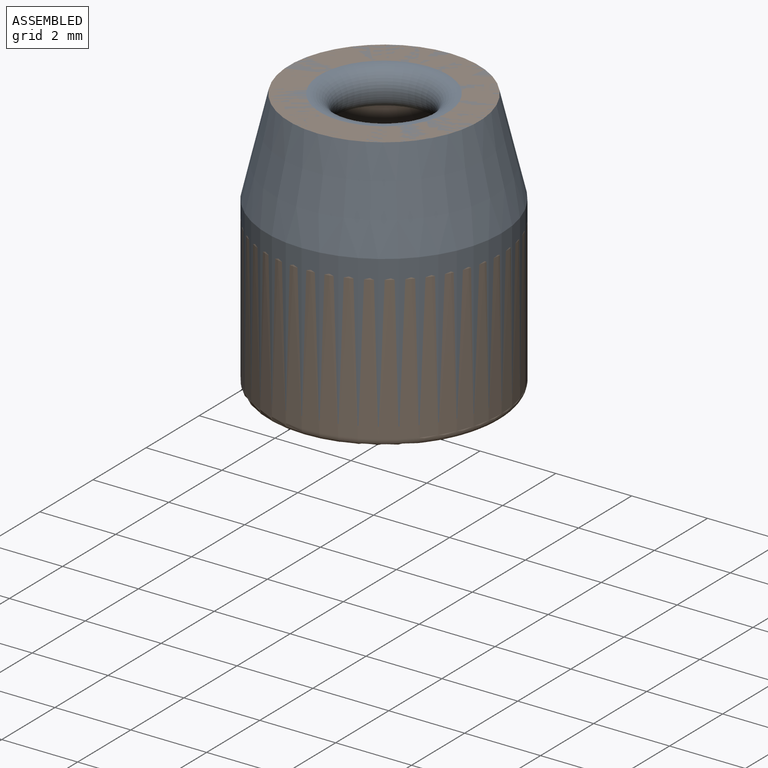
[diagram: assembled view]
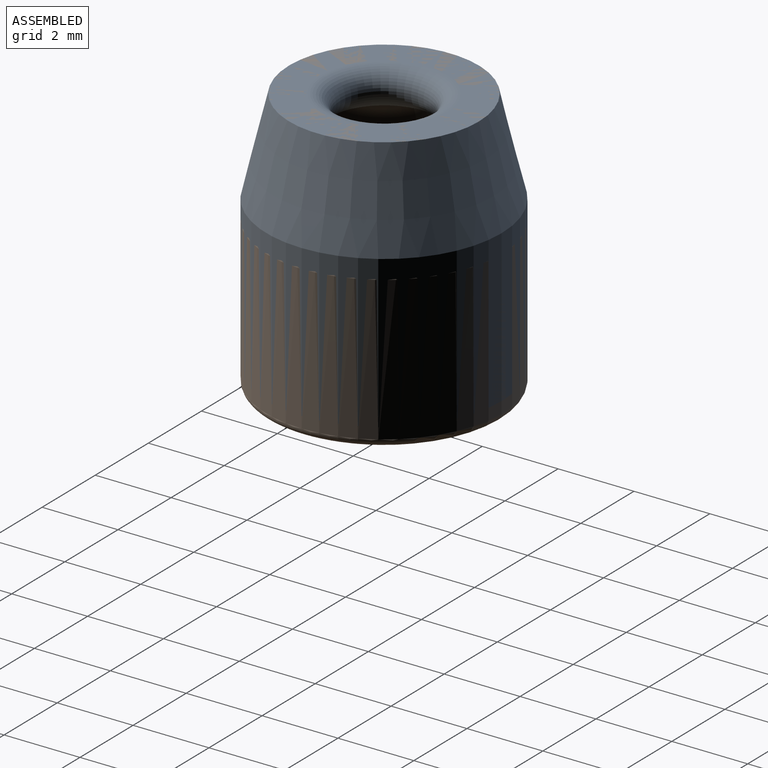
[diagram: assembled view, second angle]
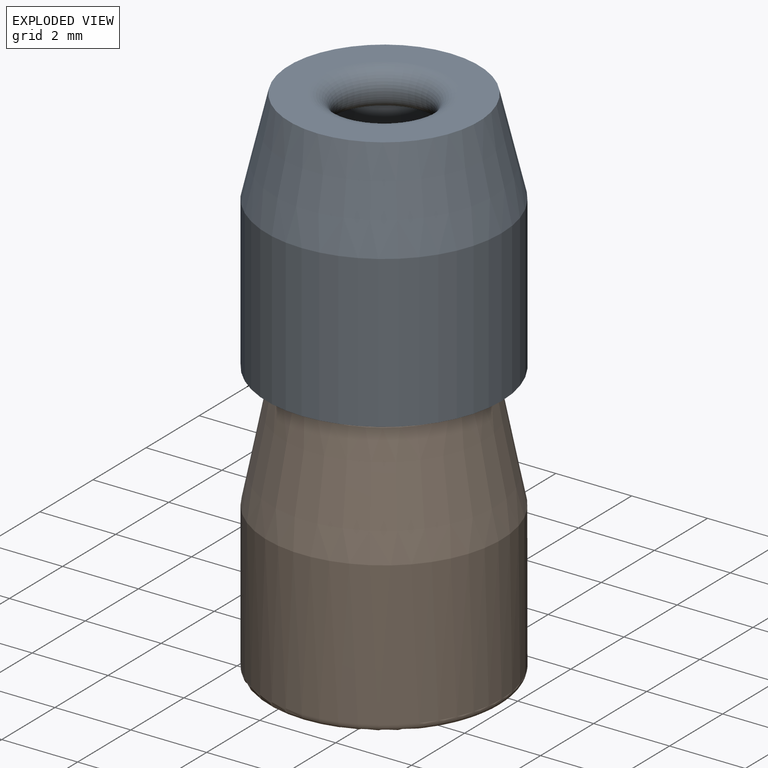
[diagram: exploded view]
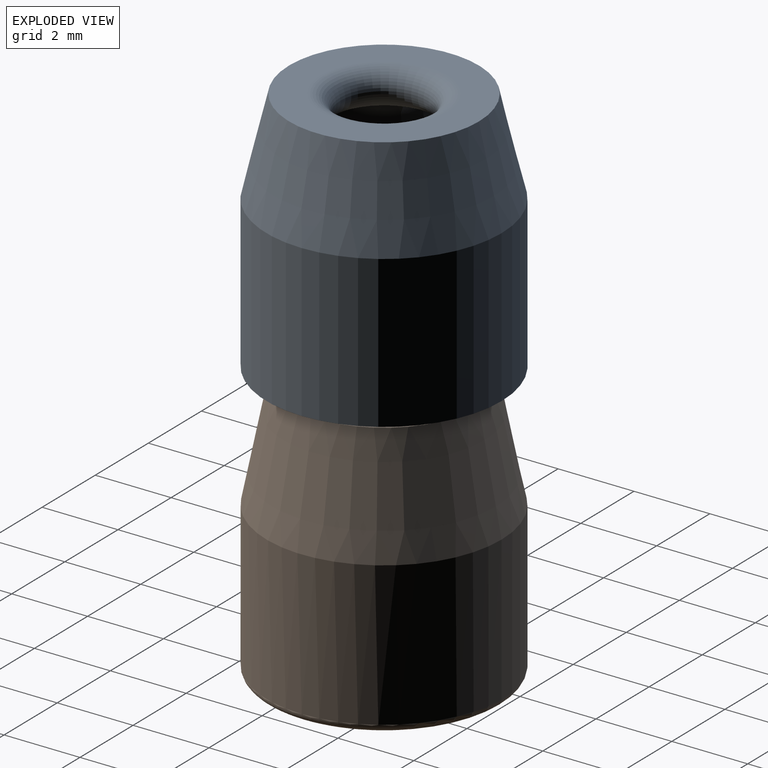
[diagram: exploded view, second angle]
ASSEMBLY  parts=2 mates=2
PART A: 9 faces, bbox 6.2x6.2x6.5 mm
  f0: cylinder r=2.5mm len=5mm, axis (0,0,-1), area 47.1mm2, adj f1,f8
  f1: cone r=2.14mm half-angle=13.5deg, axis (0,0,-1), area 22.5mm2, adj f0,f2
  f2: plane 4.28x4.28mm, normal (0,0,-1), area 5.8mm2, adj f1,f3
  f3: torus R=1.65mm, axis (0,0,-1), area 13.1mm2, adj f2,f4
  f4: plane 5x5mm, normal (0,0,1), area 11.1mm2, adj f3,f5
  f5: cone r=2.5mm half-angle=13.5deg, axis (0,0,-1), area 45.2mm2, adj f4,f6
  f6: cylinder r=3.1mm len=6.2mm, axis (0,0,-1), area 77.9mm2, adj f5,f7
  f7: plane 6.2x6.2mm, normal (0,0,-1), area 10.6mm2, adj f6,f8
  f8: torus R=2.5mm, axis (0,0,-1), area 21.5mm2, adj f0,f7
PART B: 9 faces, bbox 6.7x6.7x7 mm
  f0: plane 5.8x5.8mm, normal (0,0,-1), area 6.8mm2, adj f7,f8
  f1: cylinder r=3.1mm len=6.2mm, axis (0,0,-1), area 74mm2, adj f2,f8
  f2: cone r=2.5mm half-angle=11.3deg, axis (0,0,-1), area 53.8mm2, adj f1,f3
  f3: plane 5x5mm, normal (0,0,1), area 10.8mm2, adj f2,f4
  f4: torus R=1.68mm, axis (0,0,-1), area 13.4mm2, adj f3,f5
  f5: cone r=2.5mm half-angle=22.3deg, axis (0,0,-1), area 28.4mm2, adj f4,f6
  f6: cylinder r=2.5mm len=5mm, axis (0,0,-1), area 47.1mm2, adj f5,f7
  f7: torus R=2.5mm, axis (0,0,-1), area 21.5mm2, adj f0,f6
  f8: torus R=2.9mm, axis (0,0,1), area 6mm2, adj f0,f1
PLACE A t=(5.06,41.16,10.55)mm
PLACE B t=(5.06,41.16,-2.4)mm
MATE slider A.f0 <-> B.f8  axis (0,0,-1) through (5.06,41.16,2.1)mm
MATE planar B.f1 <-> A.f0  axis (0,0,1) through (5.06,41.16,4.6)mm
